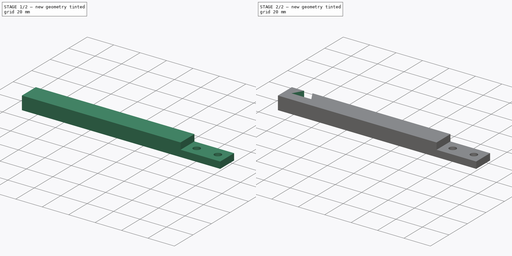
[diagram: build sequence overview — one tinted view per stage of 2, left to right]
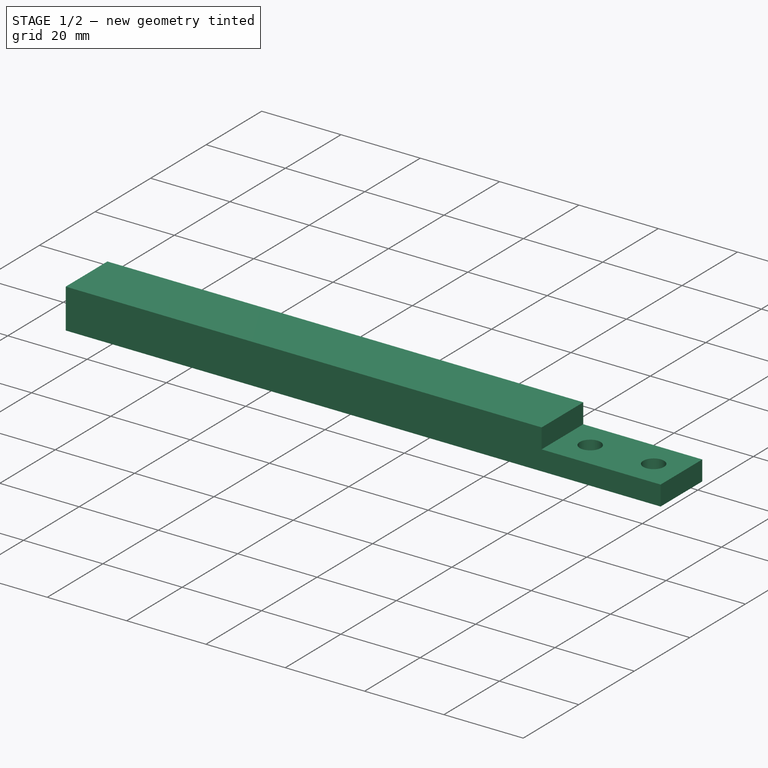
[diagram: stage 1 of 2 — iso view after this stage's code; geometry added in this stage tinted green]
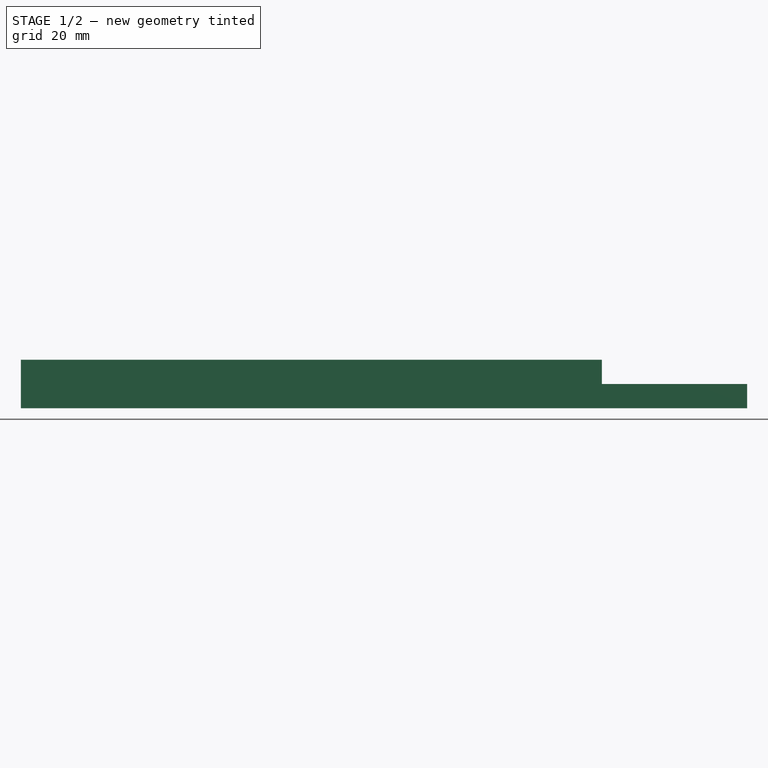
[diagram: stage 1 of 2 — front view after this stage's code; geometry added in this stage tinted green]
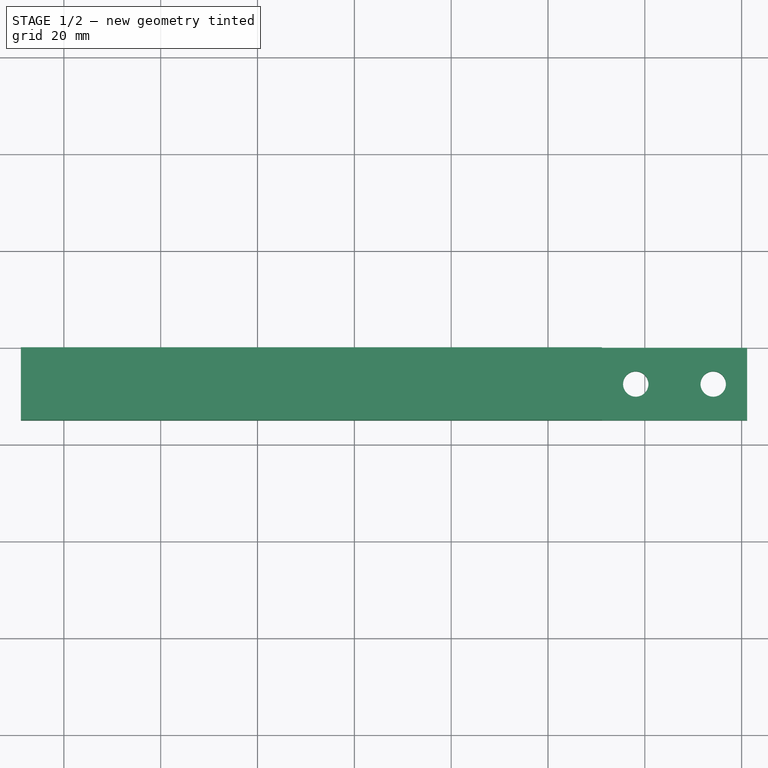
[diagram: stage 1 of 2 — top view after this stage's code; geometry added in this stage tinted green]
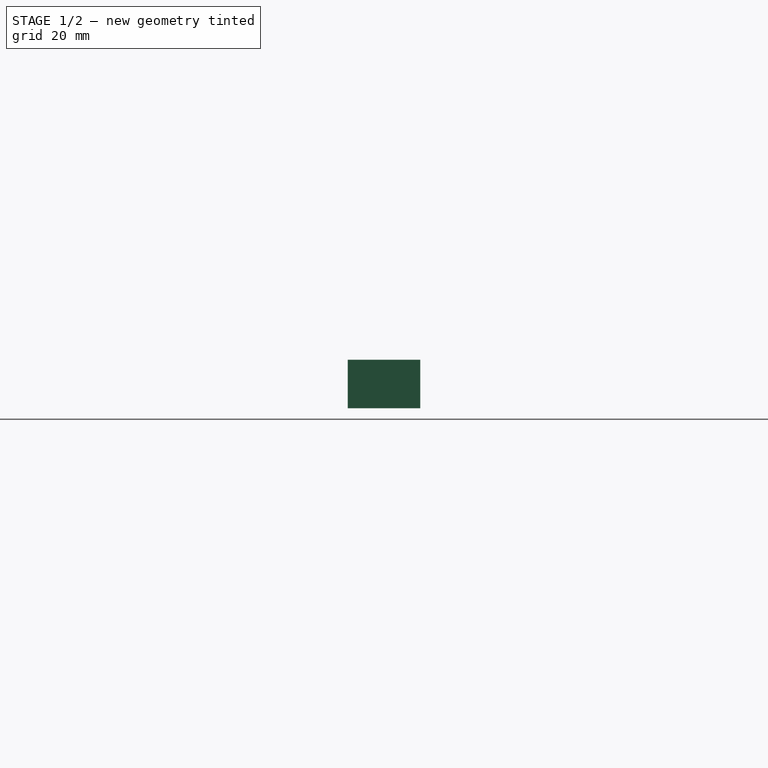
[diagram: stage 1 of 2 — right view after this stage's code; geometry added in this stage tinted green]
FCSTD DOCUMENT  (FreeCAD 0.21R33771 (Git))
Label: Bar1
License: All rights reserved
LicenseURL: https://en.wikipedia.org/wiki/All_rights_reserved
objects: Sketcher::SketchObject×3, PartDesign::Pocket×2, PartDesign::Pad×1, PartDesign::Body×1
note: 10 computed .brp shape members not serialized (recipe doc carries the construction recipe); baked Part::Feature solids carry a one-line shape summary decoded from their .brp

FEATURE [Sketcher::SketchObject] Sketch
  FullyConstrained = false
  MapMode = 5
  Placement = pos=(0,0,0) rot=(1,0,0;1.5708rad)
  Support = -> [XZ_Plane]
  sketch-geometry (6):
    g0: LineSegment StartX=-68.8753 StartY=-5.22749 StartZ=0 EndX=-68.8753 EndY=4.77251 EndZ=0
    g1: LineSegment StartX=-68.8753 StartY=4.77251 StartZ=0 EndX=51.1247 EndY=4.77251 EndZ=0
    g2: LineSegment StartX=51.1247 StartY=4.77251 StartZ=0 EndX=51.1247 EndY=-0.227487 EndZ=0
    g3: LineSegment StartX=51.1247 StartY=-0.227487 StartZ=0 EndX=81.1247 EndY=-0.227487 EndZ=0
    g4: LineSegment StartX=81.1247 StartY=-0.227487 StartZ=0 EndX=81.1247 EndY=-5.22749 EndZ=0
    g5: LineSegment StartX=81.1247 StartY=-5.22749 StartZ=0 EndX=-68.8753 EndY=-5.22749 EndZ=0
  constraints (16):
    c: Coincident(g0,g1)
    c: Horizontal(g1)
    c: Coincident(g1,g2)
    c: Vertical(g2)
    c: Coincident(g2,g3)
    c: Horizontal(g3)
    c: Coincident(g3,g4)
    c: Coincident(g4,g5)
    c: Coincident(g5,g0)
    c: Vertical(g4)
    c: Vertical(g0)
    c: Horizontal(g5)
    c: DistanceY(g4,g3) = 5
    c: DistanceY(g2,g1) = 5
    c: DistanceX(g0,g4) = 150
    c: DistanceX(g0,g1) = 120
FEATURE [PartDesign::Pad] Pad
  Direction = (0,-1,2e-16)
  Length = 15
  Length2 = 10
  Placement = pos=(0,0,0) rot=(1,0,0;1.5708rad)
  Profile = -> Sketch
  ReferenceAxis = -> Sketch [N_Axis]
  Type = 0
FEATURE [Sketcher::SketchObject] Sketch001
  ExternalGeometry = -> [Pad]
  FullyConstrained = true
  MapMode = 5
  Placement = pos=(0,-1e-16,-0.227487) rot=(0,0,1;3.14159rad)
  Support = -> [Pad]
  sketch-geometry (2):
    g0: Circle CenterX=-74.1247 CenterY=7.5 CenterZ=0 NormalX=0 NormalY=0 NormalZ=1 AngleXU=0 Radius=2.625
    g1: Circle CenterX=-58.1247 CenterY=7.5 CenterZ=0 NormalX=0 NormalY=0 NormalZ=1 AngleXU=0 Radius=2.625
  constraints (6):
    c: Diameter(g1) = 5.25
    c: Diameter(g0) = 5.25
    c: DistanceX(g1,g-3) = 7
    c: DistanceX(g-4,g0) = 7
    c: DistanceY(g1,g-3) = 7.5
    c: DistanceY(g0,g-4) = 7.5
FEATURE [PartDesign::Pocket] Pocket
  BaseFeature = -> Pad
  Direction = (0,-2e-16,-1)
  Length = 5
  Length2 = 5
  Placement = pos=(0,0,0) rot=(1,0,0;1.5708rad)
  Profile = -> Sketch001
  ReferenceAxis = -> Sketch001 [N_Axis]
  Type = 0
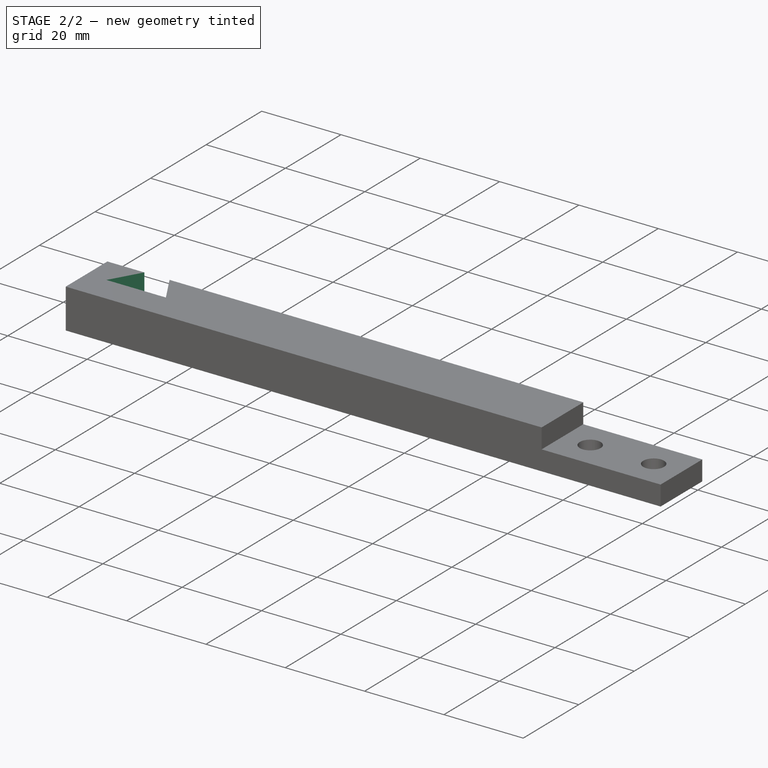
[diagram: stage 2 of 2 — iso view after this stage's code; geometry added in this stage tinted green]
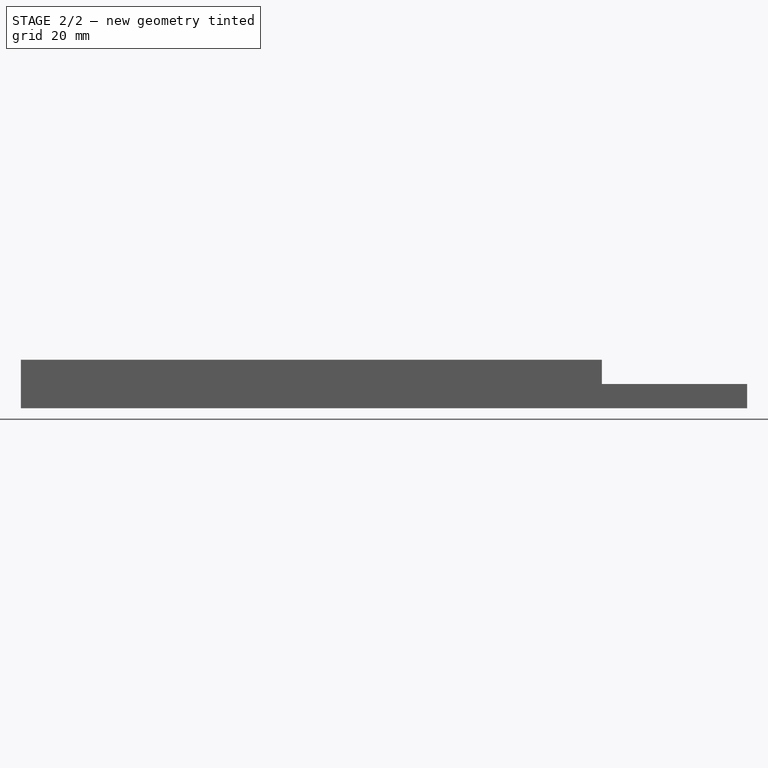
[diagram: stage 2 of 2 — front view after this stage's code; geometry added in this stage tinted green]
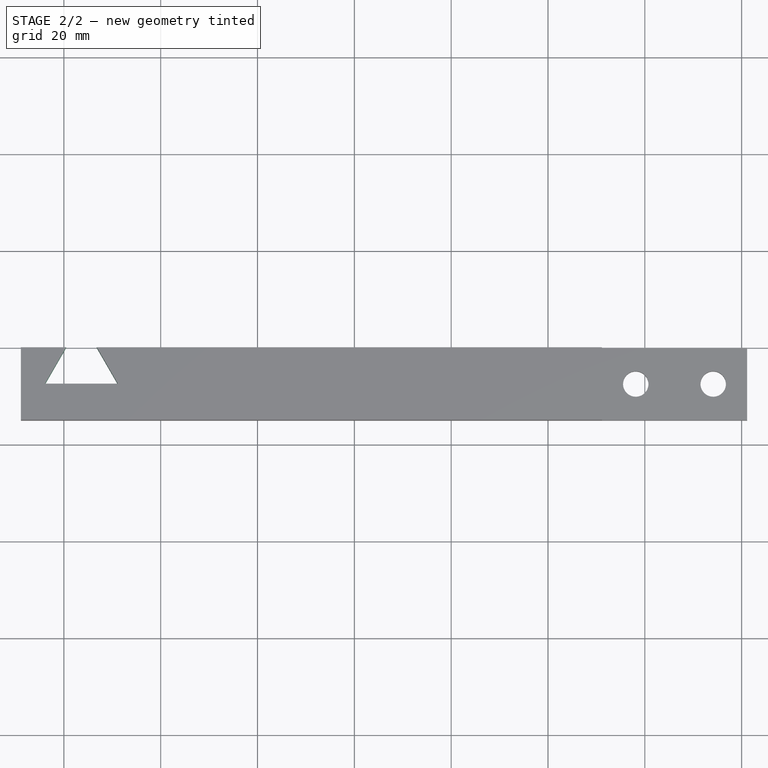
[diagram: stage 2 of 2 — top view after this stage's code; geometry added in this stage tinted green]
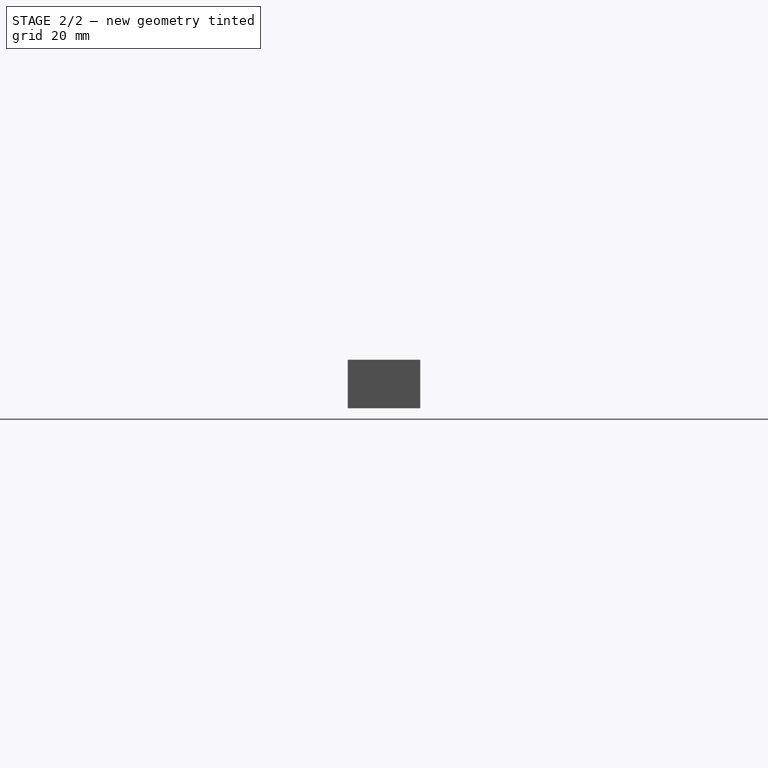
[diagram: stage 2 of 2 — right view after this stage's code; geometry added in this stage tinted green]
FEATURE [Sketcher::SketchObject] Sketch002
  ExternalGeometry = -> [Pocket]
  FullyConstrained = true
  MapMode = 5
  Placement = pos=(0,1.1e-15,4.77251) rot=(0,0,1;3.14159rad)
  Support = -> [Pocket]
  sketch-geometry (4):
    g0: LineSegment StartX=56.0921 StartY=-5 StartZ=0 EndX=48.8753 EndY=7.5 EndZ=0
    g1: LineSegment StartX=48.8753 StartY=7.5 StartZ=0 EndX=63.8753 EndY=7.5 EndZ=0
    g2: LineSegment StartX=63.8753 StartY=7.5 StartZ=0 EndX=56.6584 EndY=-5 EndZ=0
    g3: LineSegment StartX=56.0921 StartY=-5 StartZ=0 EndX=56.6584 EndY=-5 EndZ=0
  constraints (12):
    c: Coincident(g0,g1)
    c: Horizontal(g1)
    c: Coincident(g1,g2)
    c: Angle(g1,g2) = 1.0472
    c: Angle(g0,g1) = 1.0472
    c: DistanceX(g1,g-3) = 5
    c: DistanceX(g0,g1) = 15
    c: DistanceY(g-3,g1) = 7.5
    c: Coincident(g0,g3)
    c: Coincident(g3,g2)
    c: Horizontal(g3)
    c: DistanceY(g2,g-3) = 5
FEATURE [PartDesign::Pocket] Pocket001
  BaseFeature = -> Pocket
  Direction = (0,-2e-16,-1)
  Length = 10
  Length2 = 5
  Placement = pos=(0,0,0) rot=(1,0,0;1.5708rad)
  Profile = -> Sketch002
  ReferenceAxis = -> Sketch002 [N_Axis]
  Type = 0
FEATURE [PartDesign::Body] Body
  Group = -> [Sketch,Pad,Sketch001,Pocket,Sketch002,Pocket001]
  Origin = -> Origin
  Tip = -> Pocket001
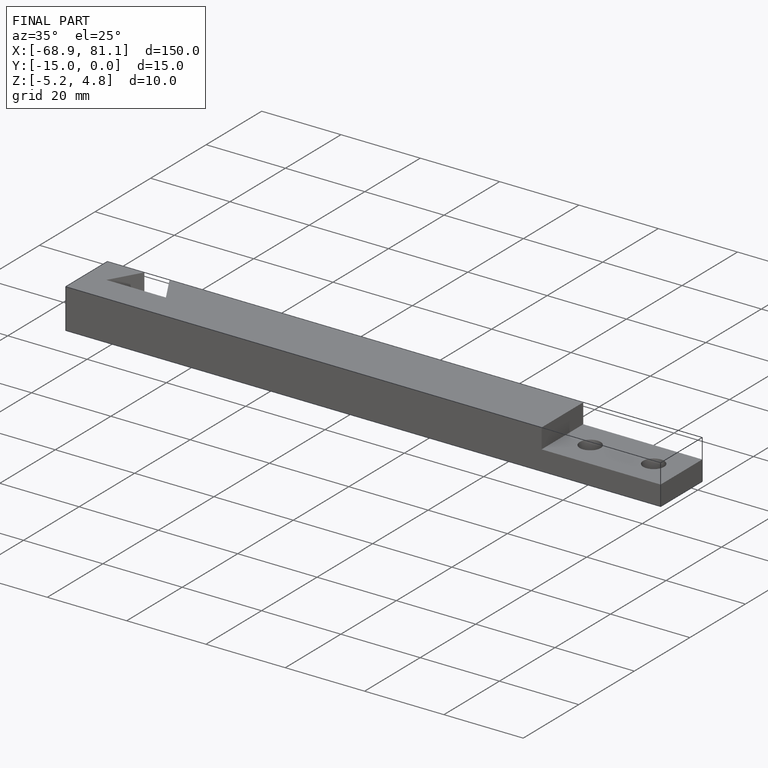
[diagram: finished part — iso view with bounding-box wireframe]
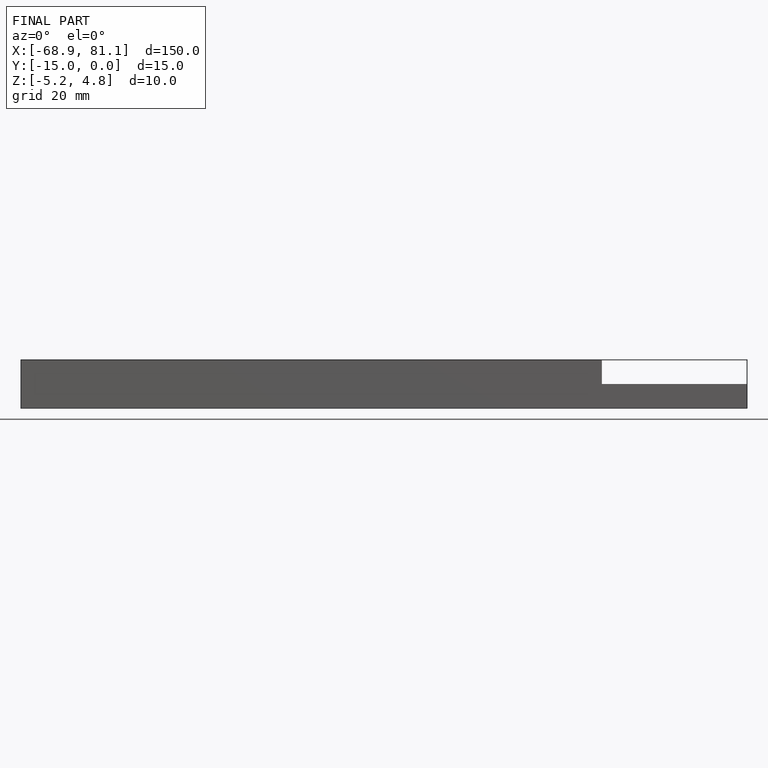
[diagram: finished part — front view with bounding-box wireframe]
